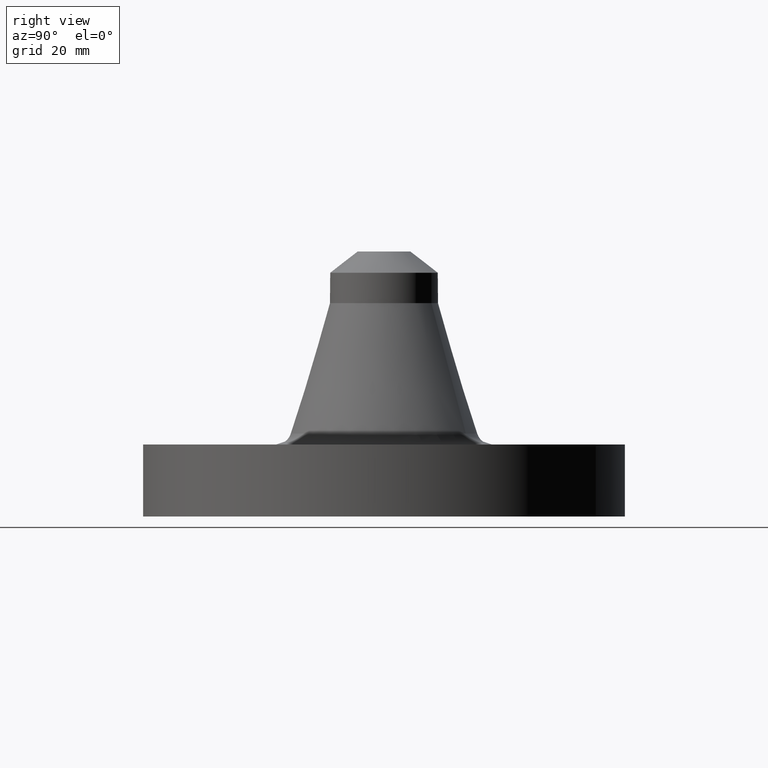
[diagram: clean part render]
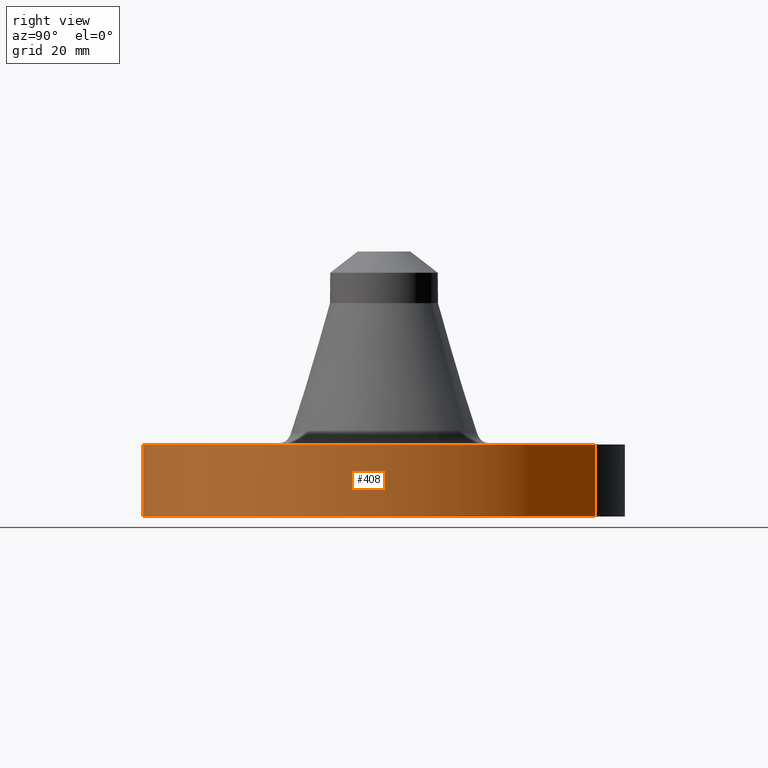
[diagram: same view with one face highlighted and labeled with its STEP entity id]
A machine part, right view. The second image highlights one B-rep face of the part: STEP entity #408.
In plain terms, the highlighted cylindrical surface (partial cylindrical patch) has radius 47.625 mm, axis along (0, 0, -1).
Its self-contained STEP definition (entity closure, byte-faithful):
#152=AXIS2_PLACEMENT_3D('Circle Axis2P3D',#150,#151,$) ;
#250=AXIS2_PLACEMENT_3D('Circle Axis2P3D',#248,#249,$) ;
#400=AXIS2_PLACEMENT_3D('Cylinder Axis2P3D',#397,#398,#399) ;
#145=CARTESIAN_POINT('Vertex',(-0.898922884866,-1.64546730358,0.)) ;
#147=CARTESIAN_POINT('Vertex',(0.898922884888,1.64546730355,-1.87734342507E-011)) ;
#150=CARTESIAN_POINT('Axis2P3D Location',(8.39223703654E-016,-1.62475807087E-011,0.)) ;
#248=CARTESIAN_POINT('Axis2P3D Location',(8.39223703654E-016,1.0000469394E-011,0.560000000002)) ;
#252=CARTESIAN_POINT('Vertex',(0.898922884866,1.64546730357,0.560000000002)) ;
#254=CARTESIAN_POINT('Vertex',(-0.898922884888,-1.64546730355,0.560000000033)) ;
#373=CARTESIAN_POINT('Line Origine',(-0.898922884888,-1.64546730355,0.280000000007)) ;
#378=CARTESIAN_POINT('Line Origine',(0.898922884888,1.64546730355,0.280000000007)) ;
#397=CARTESIAN_POINT('Axis2P3D Location',(0.,0.,1.03)) ;
#151=DIRECTION('Axis2P3D Direction',(0.,0.,-0.0393700787402)) ;
#249=DIRECTION('Axis2P3D Direction',(0.,0.,-0.0393700787402)) ;
#374=DIRECTION('Vector Direction',(0.,0.,-0.0393700787402)) ;
#379=DIRECTION('Vector Direction',(0.,0.,-0.0393700787402)) ;
#398=DIRECTION('Axis2P3D Direction',(0.,0.,-0.0393700787402)) ;
#399=DIRECTION('Axis2P3D XDirection',(0.0188750212049,0.0345504945626,0.)) ;
#375=VECTOR('Line Direction',#374,0.0393700787402) ;
#380=VECTOR('Line Direction',#379,0.0393700787402) ;
#403=ORIENTED_EDGE('',*,*,#154,.F.) ;
#404=ORIENTED_EDGE('',*,*,#382,.T.) ;
#405=ORIENTED_EDGE('',*,*,#256,.T.) ;
#406=ORIENTED_EDGE('',*,*,#377,.F.) ;
#408=ADVANCED_FACE('PartBody',(#407),#401,.T.) ;
#153=CIRCLE('generated circle',#152,1.87500000001) ;
#251=CIRCLE('generated circle',#250,1.87500000001) ;
#401=CYLINDRICAL_SURFACE('generated cylinder',#400,1.87500000001) ;
#154=EDGE_CURVE('',#148,#146,#153,.T.) ;
#256=EDGE_CURVE('',#253,#255,#251,.T.) ;
#377=EDGE_CURVE('',#146,#255,#376,.F.) ;
#382=EDGE_CURVE('',#148,#253,#381,.F.) ;
#402=EDGE_LOOP('',(#403,#404,#405,#406)) ;
#407=FACE_OUTER_BOUND('',#402,.T.) ;
#376=LINE('Line',#373,#375) ;
#381=LINE('Line',#378,#380) ;
#146=VERTEX_POINT('',#145) ;
#148=VERTEX_POINT('',#147) ;
#253=VERTEX_POINT('',#252) ;
#255=VERTEX_POINT('',#254) ;